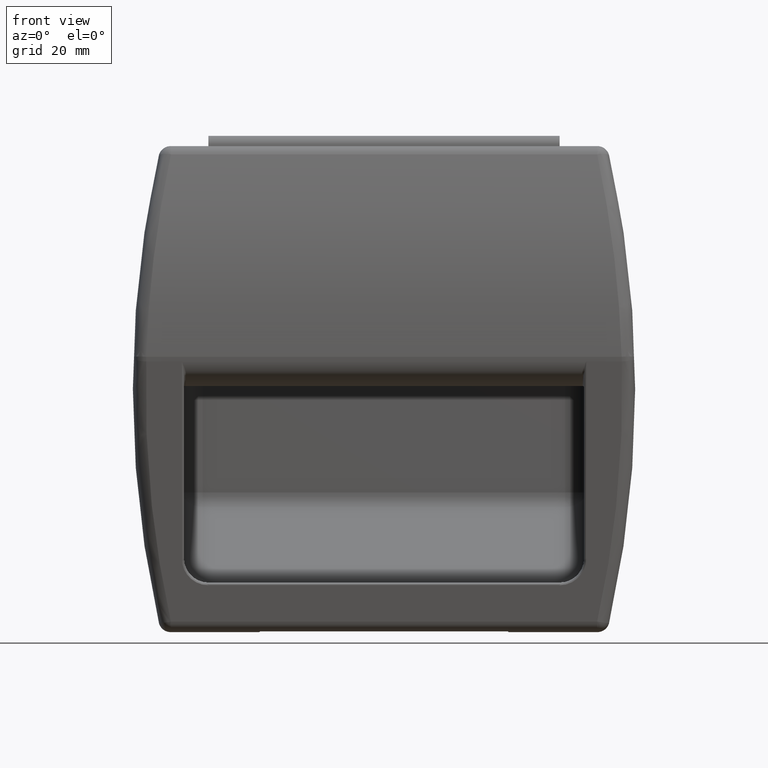
[diagram: clean part render]
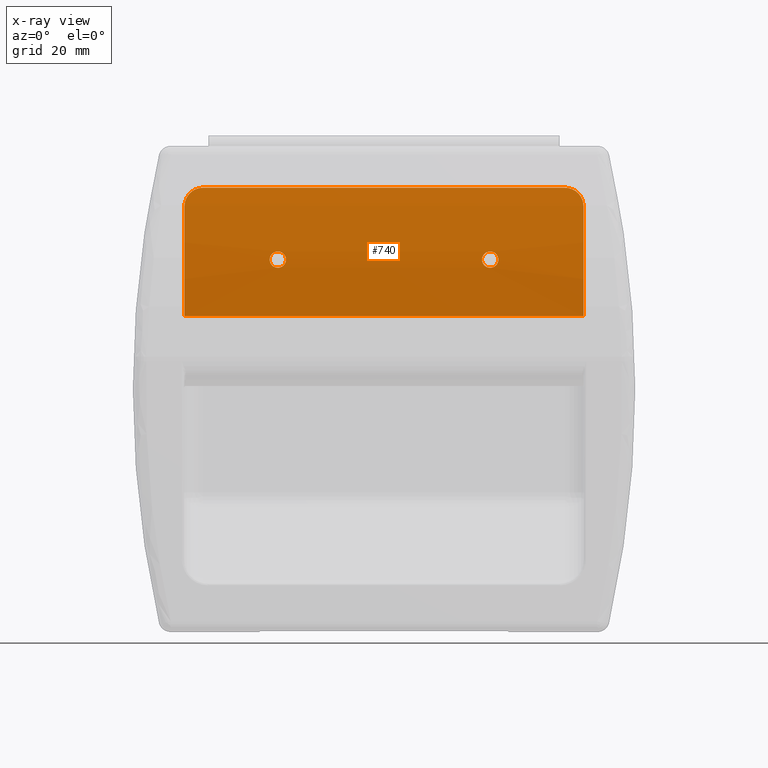
[diagram: x-ray — body ghosted, one internal face saturated and labeled with its STEP entity id]
A machine part, front view, then the same camera in x-ray: the body is ghosted and one INTERNAL B-rep face — a face not visible from any outside direction — is saturated and labeled: STEP entity #740.
In plain terms, the highlighted cylindrical surface (partial cylindrical patch) has radius 150 mm, axis along (1, 0, 0).
Its self-contained STEP definition (entity closure, byte-faithful):
#740=ADVANCED_FACE('',(#6782,#6783,#6784),#6781,.F.);
#6781=CYLINDRICAL_SURFACE('',#13339,1.50000000000E+002);
#6782=FACE_OUTER_BOUND('',#13340,.T.);
#6783=FACE_BOUND('',#13341,.T.);
#6784=FACE_BOUND('',#13342,.T.);
#13336=CARTESIAN_POINT('',(-1.00000000000E+003,-1.47175836261E+002,-2.67430042286E+000));
#13337=DIRECTION('',(-1.00000000000E+000,-0.00000000000E+000,0.00000000000E+000));
#13338=DIRECTION('',(0.00000000000E+000,-0.00000000000E+000,1.00000000000E+000));
#13339=AXIS2_PLACEMENT_3D('',#13336,#13337,#13338);
#13340=EDGE_LOOP('',(#18056,#18057,#18058,#18059,#18060,#18061));
#13341=EDGE_LOOP('',(#18062,#18063));
#13342=EDGE_LOOP('',(#18064,#18065));
#18056=ORIENTED_EDGE('',*,*,#20080,.T.);
#18057=ORIENTED_EDGE('',*,*,#20231,.T.);
#18058=ORIENTED_EDGE('',*,*,#20232,.T.);
#18059=ORIENTED_EDGE('',*,*,#20233,.F.);
#18060=ORIENTED_EDGE('',*,*,#19887,.F.);
#18061=ORIENTED_EDGE('',*,*,#20081,.T.);
#18062=ORIENTED_EDGE('',*,*,#20234,.T.);
#18063=ORIENTED_EDGE('',*,*,#20235,.T.);
#18064=ORIENTED_EDGE('',*,*,#20236,.F.);
#18065=ORIENTED_EDGE('',*,*,#20237,.F.);
#19887=EDGE_CURVE('',#28815,#28823,#28824,.T.);
#20080=EDGE_CURVE('',#30117,#30124,#30131,.T.);
#20081=EDGE_CURVE('',#28815,#30117,#30137,.T.);
#20231=EDGE_CURVE('',#30124,#30178,#31134,.T.);
#20232=EDGE_CURVE('',#30178,#28872,#31140,.T.);
#20233=EDGE_CURVE('',#28823,#28872,#31146,.T.);
#20234=EDGE_CURVE('',#31152,#31153,#31154,.T.);
#20235=EDGE_CURVE('',#31153,#31152,#31160,.T.);
#20236=EDGE_CURVE('',#31166,#31167,#31168,.T.);
#20237=EDGE_CURVE('',#31167,#31166,#31174,.T.);
#28815=VERTEX_POINT('',#37688);
#28823=VERTEX_POINT('',#37694);
#28824=(BOUNDED_CURVE() B_SPLINE_CURVE(3,(#37695,#37696,#37697,#37698,#37699,#37700,#37701,#37702,#37703,#37704,#37705,#37706,#37707,#37708,#37709,#37710,#37711,#37712),.UNSPECIFIED.,.F.,.F.) B_SPLINE_CURVE_WITH_KNOTS((4,2,2,2,2,2,2,2,4),(0.00000000000E+000,9.08258828072E-004,1.81651765614E-003,2.72477648422E-003,3.63303531229E-003,4.54129414036E-003,5.44955296843E-003,6.35781179650E-003,7.26607062457E-003),.UNSPECIFIED.) CURVE() GEOMETRIC_REPRESENTATION_ITEM() RATIONAL_B_SPLINE_CURVE((1.00000000000E+000,1.00000000000E+000,1.00000000000E+000,1.00000000000E+000,1.00000000000E+000,1.00000000000E+000,1.00000000000E+000,1.00000000000E+000,1.00000000000E+000,1.00000000000E+000,1.00000000000E+000,1.00000000000E+000,1.00000000000E+000,1.00000000000E+000,1.00000000000E+000,1.00000000000E+000,1.00000000000E+000,1.00000000000E+000)) REPRESENTATION_ITEM('') );
#28872=VERTEX_POINT('',#37755);
#30117=VERTEX_POINT('',#38840);
#30124=VERTEX_POINT('',#38845);
#30131=(BOUNDED_CURVE() B_SPLINE_CURVE(3,(#38850,#38851,#38852,#38853,#38854,#38855,#38856,#38857,#38858,#38859,#38860,#38861,#38862,#38863,#38864,#38865,#38866,#38867),.UNSPECIFIED.,.F.,.F.) B_SPLINE_CURVE_WITH_KNOTS((4,2,2,2,2,2,2,2,4),(0.00000000000E+000,9.08258828072E-004,1.81651765614E-003,2.72477648422E-003,3.63303531229E-003,4.54129414036E-003,5.44955296843E-003,6.35781179650E-003,7.26607062457E-003),.UNSPECIFIED.) CURVE() GEOMETRIC_REPRESENTATION_ITEM() RATIONAL_B_SPLINE_CURVE((1.00000000000E+000,1.00000000000E+000,1.00000000000E+000,1.00000000000E+000,1.00000000000E+000,1.00000000000E+000,1.00000000000E+000,1.00000000000E+000,1.00000000000E+000,1.00000000000E+000,1.00000000000E+000,1.00000000000E+000,1.00000000000E+000,1.00000000000E+000,1.00000000000E+000,1.00000000000E+000,1.00000000000E+000,1.00000000000E+000)) REPRESENTATION_ITEM('') );
#30137=LINE('',#38868,#38869);
#30178=VERTEX_POINT('',#38893);
#31134=CIRCLE('',#39588,1.50000000000E+002);
#31140=LINE('',#39589,#39590);
#31146=CIRCLE('',#39595,1.50000000000E+002);
#31152=VERTEX_POINT('',#39596);
#31153=VERTEX_POINT('',#39597);
#31154=(BOUNDED_CURVE() B_SPLINE_CURVE(3,(#39598,#39599,#39600,#39601,#39602,#39603,#39604,#39605,#39606,#39607,#39608,#39609,#39610,#39611,#39612,#39613,#39614,#39615,#39616,#39617,#39618,#39619,#39620,#39621,#39622,#39623,#39624,#39625,#39626,#39627,#39628,#39629),.UNSPECIFIED.,.F.,.F.) B_SPLINE_CURVE_WITH_KNOTS((4,2,2,2,2,2,2,2,2,2,2,2,2,2,2,4),(1.23330994336E-002,1.27313672789E-002,1.31296351242E-002,1.35279029695E-002,1.39261708148E-002,1.47227065054E-002,1.51209743507E-002,1.55192421960E-002,1.59175100413E-002,1.63157778866E-002,1.67140457319E-002,1.71123135772E-002,1.75105814225E-002,1.79088492678E-002,1.83071171131E-002,1.87053849584E-002),.UNSPECIFIED.) CURVE() GEOMETRIC_REPRESENTATION_ITEM() RATIONAL_B_SPLINE_CURVE((1.00000000000E+000,1.00000000000E+000,1.00000000000E+000,1.00000000000E+000,1.00000000000E+000,1.00000000000E+000,1.00000000000E+000,1.00000000000E+000,1.00000000000E+000,1.00000000000E+000,1.00000000000E+000,1.00000000000E+000,1.00000000000E+000,1.00000000000E+000,1.00000000000E+000,1.00000000000E+000,1.00000000000E+000,1.00000000000E+000,1.00000000000E+000,1.00000000000E+000,1.00000000000E+000,1.00000000000E+000,1.00000000000E+000,1.00000000000E+000,1.00000000000E+000,1.00000000000E+000,1.00000000000E+000,1.00000000000E+000,1.00000000000E+000,1.00000000000E+000,1.00000000000E+000,1.00000000000E+000)) REPRESENTATION_ITEM('') );
#31160=(BOUNDED_CURVE() B_SPLINE_CURVE(3,(#39630,#39631,#39632,#39633,#39634,#39635,#39636,#39637,#39638,#39639,#39640,#39641,#39642,#39643,#39644,#39645,#39646,#39647,#39648,#39649,#39650,#39651,#39652,#39653,#39654,#39655,#39656,#39657,#39658,#39659),.UNSPECIFIED.,.F.,.F.) B_SPLINE_CURVE_WITH_KNOTS((4,2,2,2,2,2,2,2,2,2,2,2,2,2,4),(1.87053849584E-002,1.91036528037E-002,1.95019206490E-002,2.02984563396E-002,2.06967241849E-002,2.10949920302E-002,2.14932598755E-002,2.18915277208E-002,2.26880634114E-002,2.30863312567E-002,2.34845991020E-002,2.38828669473E-002,2.42811347926E-002,2.46794026379E-002,2.50776704832E-002),.UNSPECIFIED.) CURVE() GEOMETRIC_REPRESENTATION_ITEM() RATIONAL_B_SPLINE_CURVE((1.00000000000E+000,1.00000000000E+000,1.00000000000E+000,1.00000000000E+000,1.00000000000E+000,1.00000000000E+000,1.00000000000E+000,1.00000000000E+000,1.00000000000E+000,1.00000000000E+000,1.00000000000E+000,1.00000000000E+000,1.00000000000E+000,1.00000000000E+000,1.00000000000E+000,1.00000000000E+000,1.00000000000E+000,1.00000000000E+000,1.00000000000E+000,1.00000000000E+000,1.00000000000E+000,1.00000000000E+000,1.00000000000E+000,1.00000000000E+000,1.00000000000E+000,1.00000000000E+000,1.00000000000E+000,1.00000000000E+000,1.00000000000E+000,1.00000000000E+000)) REPRESENTATION_ITEM('') );
#31166=VERTEX_POINT('',#39660);
#31167=VERTEX_POINT('',#39661);
#31168=(BOUNDED_CURVE() B_SPLINE_CURVE(3,(#39662,#39663,#39664,#39665,#39666,#39667,#39668,#39669,#39670,#39671,#39672,#39673,#39674,#39675,#39676,#39677,#39678,#39679,#39680,#39681,#39682,#39683,#39684,#39685,#39686,#39687,#39688,#39689,#39690,#39691),.UNSPECIFIED.,.F.,.F.) B_SPLINE_CURVE_WITH_KNOTS((4,2,2,2,2,2,2,2,2,2,2,2,2,2,4),(1.87053849584E-002,1.91036528037E-002,1.95019206490E-002,2.02984563396E-002,2.06967241849E-002,2.10949920302E-002,2.14932598755E-002,2.18915277208E-002,2.26880634114E-002,2.30863312567E-002,2.34845991020E-002,2.38828669473E-002,2.42811347926E-002,2.46794026379E-002,2.50776704832E-002),.UNSPECIFIED.) CURVE() GEOMETRIC_REPRESENTATION_ITEM() RATIONAL_B_SPLINE_CURVE((1.00000000000E+000,1.00000000000E+000,1.00000000000E+000,1.00000000000E+000,1.00000000000E+000,1.00000000000E+000,1.00000000000E+000,1.00000000000E+000,1.00000000000E+000,1.00000000000E+000,1.00000000000E+000,1.00000000000E+000,1.00000000000E+000,1.00000000000E+000,1.00000000000E+000,1.00000000000E+000,1.00000000000E+000,1.00000000000E+000,1.00000000000E+000,1.00000000000E+000,1.00000000000E+000,1.00000000000E+000,1.00000000000E+000,1.00000000000E+000,1.00000000000E+000,1.00000000000E+000,1.00000000000E+000,1.00000000000E+000,1.00000000000E+000,1.00000000000E+000)) REPRESENTATION_ITEM('') );
#31174=(BOUNDED_CURVE() B_SPLINE_CURVE(3,(#39692,#39693,#39694,#39695,#39696,#39697,#39698,#39699,#39700,#39701,#39702,#39703,#39704,#39705,#39706,#39707,#39708,#39709,#39710,#39711,#39712,#39713,#39714,#39715,#39716,#39717,#39718,#39719,#39720,#39721,#39722,#39723),.UNSPECIFIED.,.F.,.F.) B_SPLINE_CURVE_WITH_KNOTS((4,2,2,2,2,2,2,2,2,2,2,2,2,2,2,4),(1.23330994336E-002,1.27313672789E-002,1.31296351242E-002,1.35279029695E-002,1.39261708148E-002,1.47227065054E-002,1.51209743507E-002,1.55192421960E-002,1.59175100413E-002,1.63157778866E-002,1.67140457319E-002,1.71123135772E-002,1.75105814225E-002,1.79088492678E-002,1.83071171131E-002,1.87053849584E-002),.UNSPECIFIED.) CURVE() GEOMETRIC_REPRESENTATION_ITEM() RATIONAL_B_SPLINE_CURVE((1.00000000000E+000,1.00000000000E+000,1.00000000000E+000,1.00000000000E+000,1.00000000000E+000,1.00000000000E+000,1.00000000000E+000,1.00000000000E+000,1.00000000000E+000,1.00000000000E+000,1.00000000000E+000,1.00000000000E+000,1.00000000000E+000,1.00000000000E+000,1.00000000000E+000,1.00000000000E+000,1.00000000000E+000,1.00000000000E+000,1.00000000000E+000,1.00000000000E+000,1.00000000000E+000,1.00000000000E+000,1.00000000000E+000,1.00000000000E+000,1.00000000000E+000,1.00000000000E+000,1.00000000000E+000,1.00000000000E+000,1.00000000000E+000,1.00000000000E+000,1.00000000000E+000,1.00000000000E+000)) REPRESENTATION_ITEM('') );
#37688=CARTESIAN_POINT('',(4.43499999997E+001,-3.84400463067E+000,4.15522305443E+001));
#37694=CARTESIAN_POINT('',(4.88499999997E+001,-2.52799392462E+000,3.70371803771E+001));
#37695=CARTESIAN_POINT('',(4.43499999997E+001,-3.84400463067E+000,4.15522305443E+001));
#37696=CARTESIAN_POINT('',(4.46541116868E+001,-3.84400463067E+000,4.15522305443E+001));
#37697=CARTESIAN_POINT('',(4.49567373665E+001,-3.83444212195E+000,4.15212738085E+001));
#37698=CARTESIAN_POINT('',(4.55490904051E+001,-3.79696730919E+000,4.13995466235E+001));
#37699=CARTESIAN_POINT('',(4.58338161271E+001,-3.76948100003E+000,4.13101528693E+001));
#37700=CARTESIAN_POINT('',(4.63814869866E+001,-3.69817833624E+000,4.10770028386E+001));
#37701=CARTESIAN_POINT('',(4.66471414503E+001,-3.65367669413E+000,4.09309793304E+001));
#37702=CARTESIAN_POINT('',(4.71357029073E+001,-3.55218318103E+000,4.05955156741E+001));
#37703=CARTESIAN_POINT('',(4.73602784853E+001,-3.49520805049E+000,4.04061514301E+001));
#37704=CARTESIAN_POINT('',(4.77710519988E+001,-3.36964481401E+000,3.99851364738E+001));
#37705=CARTESIAN_POINT('',(4.79571918697E+001,-3.30070799366E+000,3.97522486333E+001));
#37706=CARTESIAN_POINT('',(4.82751385882E+001,-3.15775772867E+000,3.92644364992E+001));
#37707=CARTESIAN_POINT('',(4.84094702356E+001,-3.08306764372E+000,3.90072695239E+001));
#37708=CARTESIAN_POINT('',(4.86285913773E+001,-2.92763941973E+000,3.84661535010E+001));
#37709=CARTESIAN_POINT('',(4.87116705308E+001,-2.84771593624E+000,3.81849746287E+001));
#37710=CARTESIAN_POINT('',(4.88218668109E+001,-2.68843949419E+000,3.76181163546E+001));
#37711=CARTESIAN_POINT('',(4.88499999997E+001,-2.60840235175E+000,3.73300655895E+001));
#37712=CARTESIAN_POINT('',(4.88499999997E+001,-2.52799392462E+000,3.70371803771E+001));
#37755=CARTESIAN_POINT('',(4.88499999997E+001,2.27738849453E+000,1.01215430454E+001));
#38840=CARTESIAN_POINT('',(-4.43499999997E+001,-3.84400463067E+000,4.15522305443E+001));
#38845=CARTESIAN_POINT('',(-4.88499999997E+001,-2.52799392462E+000,3.70371803771E+001));
#38850=CARTESIAN_POINT('',(-4.43499999997E+001,-3.84400463067E+000,4.15522305443E+001));
#38851=CARTESIAN_POINT('',(-4.46541116868E+001,-3.84400463067E+000,4.15522305443E+001));
#38852=CARTESIAN_POINT('',(-4.49567373665E+001,-3.83444212195E+000,4.15212738085E+001));
#38853=CARTESIAN_POINT('',(-4.55490904051E+001,-3.79696730919E+000,4.13995466235E+001));
#38854=CARTESIAN_POINT('',(-4.58338161271E+001,-3.76948100003E+000,4.13101528693E+001));
#38855=CARTESIAN_POINT('',(-4.63814869866E+001,-3.69817833624E+000,4.10770028386E+001));
#38856=CARTESIAN_POINT('',(-4.66471414503E+001,-3.65367669413E+000,4.09309793304E+001));
#38857=CARTESIAN_POINT('',(-4.71357029073E+001,-3.55218318103E+000,4.05955156741E+001));
#38858=CARTESIAN_POINT('',(-4.73602784853E+001,-3.49520805049E+000,4.04061514301E+001));
#38859=CARTESIAN_POINT('',(-4.77710519988E+001,-3.36964481401E+000,3.99851364738E+001));
#38860=CARTESIAN_POINT('',(-4.79571918697E+001,-3.30070799366E+000,3.97522486333E+001));
#38861=CARTESIAN_POINT('',(-4.82751385882E+001,-3.15775772867E+000,3.92644364992E+001));
#38862=CARTESIAN_POINT('',(-4.84094702356E+001,-3.08306764372E+000,3.90072695239E+001));
#38863=CARTESIAN_POINT('',(-4.86285913773E+001,-2.92763941973E+000,3.84661535010E+001));
#38864=CARTESIAN_POINT('',(-4.87116705308E+001,-2.84771593624E+000,3.81849746287E+001));
#38865=CARTESIAN_POINT('',(-4.88218668109E+001,-2.68843949419E+000,3.76181163546E+001));
#38866=CARTESIAN_POINT('',(-4.88499999997E+001,-2.60840235175E+000,3.73300655895E+001));
#38867=CARTESIAN_POINT('',(-4.88499999997E+001,-2.52799392462E+000,3.70371803771E+001));
#38868=CARTESIAN_POINT('',(4.43499999997E+001,-3.84400463067E+000,4.15522305443E+001));
#38869=VECTOR('',#38870,8.86999999995E+001);
#38870=DIRECTION('',(-1.00000000000E+000,0.00000000000E+000,0.00000000000E+000));
#38893=CARTESIAN_POINT('',(-4.88499999997E+001,2.27738849453E+000,1.01215430454E+001));
#39585=CARTESIAN_POINT('',(-4.88499999997E+001,-1.47175836261E+002,-2.67430042286E+000));
#39586=DIRECTION('',(-1.00000000000E+000,0.00000000000E+000,0.00000000000E+000));
#39587=DIRECTION('',(-0.00000000000E+000,-0.00000000000E+000,-1.00000000000E+000));
#39588=AXIS2_PLACEMENT_3D('',#39585,#39586,#39587);
#39589=CARTESIAN_POINT('',(-4.88499999997E+001,2.27738849453E+000,1.01215430454E+001));
#39590=VECTOR('',#39591,9.76999999995E+001);
#39591=DIRECTION('',(1.00000000000E+000,0.00000000000E+000,0.00000000000E+000));
#39592=CARTESIAN_POINT('',(4.88499999997E+001,-1.47175836261E+002,-2.67430042286E+000));
#39593=DIRECTION('',(-1.00000000000E+000,0.00000000000E+000,0.00000000000E+000));
#39594=DIRECTION('',(-0.00000000000E+000,-0.00000000000E+000,-1.00000000000E+000));
#39595=AXIS2_PLACEMENT_3D('',#39592,#39593,#39594);
#39596=CARTESIAN_POINT('',(-2.55920792867E+001,7.81258618352E-001,2.19975068631E+001));
#39597=CARTESIAN_POINT('',(-2.64056786796E+001,7.62004203610E-002,2.59060720920E+001));
#39598=CARTESIAN_POINT('',(-2.55920792867E+001,7.81258618352E-001,2.19975068631E+001));
#39599=CARTESIAN_POINT('',(-2.57222591807E+001,7.85772120793E-001,2.19704393402E+001));
#39600=CARTESIAN_POINT('',(-2.58538238824E+001,7.88095610822E-001,2.19564702861E+001));
#39601=CARTESIAN_POINT('',(-2.61197210351E+001,7.88387764138E-001,2.19547151751E+001));
#39602=CARTESIAN_POINT('',(-2.62531034299E+001,7.86306136528E-001,2.19672309353E+001));
#39603=CARTESIAN_POINT('',(-2.65118842400E+001,7.77916898211E-001,2.20175520116E+001));
#39604=CARTESIAN_POINT('',(-2.66374110983E+001,7.71654593310E-001,2.20550849663E+001));
#39605=CARTESIAN_POINT('',(-2.68807865632E+001,7.54964472450E-001,2.21547298879E+001));
#39606=CARTESIAN_POINT('',(-2.69987268909E+001,7.44456743057E-001,2.22173104746E+001));
#39607=CARTESIAN_POINT('',(-2.73254581262E+001,7.07850491481E-001,2.24341980331E+001));
#39608=CARTESIAN_POINT('',(-2.75155698475E+001,6.75667929080E-001,2.26235362987E+001));
#39609=CARTESIAN_POINT('',(-2.77330254568E+001,6.19867599737E-001,2.29468213079E+001));
#39610=CARTESIAN_POINT('',(-2.77955938734E+001,5.99711081490E-001,2.30628814019E+001));
#39611=CARTESIAN_POINT('',(-2.78961638418E+001,5.57597634864E-001,2.33035253135E+001));
#39612=CARTESIAN_POINT('',(-2.79341132393E+001,5.35803437569E-001,2.34271961361E+001));
#39613=CARTESIAN_POINT('',(-2.79858020237E+001,4.90711976057E-001,2.36811004812E+001));
#39614=CARTESIAN_POINT('',(-2.79993364080E+001,4.67224800409E-001,2.38123715650E+001));
#39615=CARTESIAN_POINT('',(-2.80006149309E+001,4.20584470776E-001,2.40710516919E+001));
#39616=CARTESIAN_POINT('',(-2.79887718883E+001,3.97235632269E-001,2.41995773257E+001));
#39617=CARTESIAN_POINT('',(-2.79397235834E+001,3.50497519109E-001,2.44549770216E+001));
#39618=CARTESIAN_POINT('',(-2.79024149422E+001,3.27291184054E-001,2.45808316761E+001));
#39619=CARTESIAN_POINT('',(-2.78052685264E+001,2.82839377119E-001,2.48203137926E+001));
#39620=CARTESIAN_POINT('',(-2.77451899759E+001,2.61346045344E-001,2.49352950294E+001));
#39621=CARTESIAN_POINT('',(-2.76010531374E+001,2.20044918364E-001,2.51549413711E+001));
#39622=CARTESIAN_POINT('',(-2.75193418579E+001,2.00907045068E-001,2.52560492835E+001));
#39623=CARTESIAN_POINT('',(-2.73372734338E+001,1.65653253206E-001,2.54414312937E+001));
#39624=CARTESIAN_POINT('',(-2.72356970015E+001,1.49388134456E-001,2.55264782346E+001));
#39625=CARTESIAN_POINT('',(-2.70186780612E+001,1.21025223035E-001,2.56742490465E+001));
#39626=CARTESIAN_POINT('',(-2.69040803224E+001,1.08963958887E-001,2.57367951283E+001));
#39627=CARTESIAN_POINT('',(-2.66627627569E+001,8.91487168668E-002,2.58393265948E+001));
#39628=CARTESIAN_POINT('',(-2.65351309685E+001,8.13946845505E-002,2.58793101601E+001));
#39629=CARTESIAN_POINT('',(-2.64056786796E+001,7.62004203610E-002,2.59060720920E+001));
#39630=CARTESIAN_POINT('',(-2.64056786796E+001,7.62004203610E-002,2.59060720920E+001));
#39631=CARTESIAN_POINT('',(-2.62762263907E+001,7.10061561716E-002,2.59328340238E+001));
#39632=CARTESIAN_POINT('',(-2.61430118117E+001,6.82940445545E-002,2.59467773180E+001));
#39633=CARTESIAN_POINT('',(-2.58799891857E+001,6.80006317034E-002,2.59482867698E+001));
#39634=CARTESIAN_POINT('',(-2.57493674252E+001,7.03487770339E-002,2.59362158998E+001));
#39635=CARTESIAN_POINT('',(-2.53602081926E+001,8.49537659676E-002,2.58609817899E+001));
#39636=CARTESIAN_POINT('',(-2.51134721624E+001,1.04545836683E-001,2.57600281351E+001));
#39637=CARTESIAN_POINT('',(-2.47838120744E+001,1.46496633995E-001,2.55415768122E+001));
#39638=CARTESIAN_POINT('',(-2.46827973879E+001,1.62268597402E-001,2.54591594957E+001));
#39639=CARTESIAN_POINT('',(-2.44978782186E+001,1.97163525003E-001,2.52757916043E+001));
#39640=CARTESIAN_POINT('',(-2.44133359603E+001,2.16512376630E-001,2.51736367362E+001));
#39641=CARTESIAN_POINT('',(-2.42679315387E+001,2.57098599294E-001,2.49579589746E+001));
#39642=CARTESIAN_POINT('',(-2.42063587745E+001,2.78402120505E-001,2.48441016497E+001));
#39643=CARTESIAN_POINT('',(-2.41054912631E+001,3.22948506338E-001,2.46043242025E+001));
#39644=CARTESIAN_POINT('',(-2.40666546060E+001,3.46145479476E-001,2.44786265062E+001));
#39645=CARTESIAN_POINT('',(-2.39887600038E+001,4.15656621479E-001,2.40991449820E+001));
#39646=CARTESIAN_POINT('',(-2.39868081971E+001,4.63634699626E-001,2.38333031279E+001));
#39647=CARTESIAN_POINT('',(-2.40591634936E+001,5.31302227732E-001,2.34526559111E+001));
#39648=CARTESIAN_POINT('',(-2.40960569209E+001,5.53531619172E-001,2.33266409732E+001));
#39649=CARTESIAN_POINT('',(-2.41937433802E+001,5.95916992386E-001,2.30846597304E+001));
#39650=CARTESIAN_POINT('',(-2.42537950340E+001,6.15883596407E-001,2.29697970094E+001));
#39651=CARTESIAN_POINT('',(-2.43960360655E+001,6.53476899498E-001,2.27521889538E+001));
#39652=CARTESIAN_POINT('',(-2.44792856382E+001,6.71246558370E-001,2.26485952001E+001));
#39653=CARTESIAN_POINT('',(-2.46621137419E+001,7.03055154949E-001,2.24621753548E+001));
#39654=CARTESIAN_POINT('',(-2.47619821522E+001,7.17251911054E-001,2.23784462422E+001));
#39655=CARTESIAN_POINT('',(-2.49789094147E+001,7.42274140286E-001,2.22302826864E+001));
#39656=CARTESIAN_POINT('',(-2.50958038010E+001,7.53006835485E-001,2.21663935127E+001));
#39657=CARTESIAN_POINT('',(-2.53366986304E+001,7.70166135391E-001,2.20639911510E+001));
#39658=CARTESIAN_POINT('',(-2.54618993926E+001,7.76745115911E-001,2.20245743860E+001));
#39659=CARTESIAN_POINT('',(-2.55920792867E+001,7.81258618352E-001,2.19975068631E+001));
#39660=CARTESIAN_POINT('',(2.64056786796E+001,7.62004203610E-002,2.59060720920E+001));
#39661=CARTESIAN_POINT('',(2.55920792867E+001,7.81258618352E-001,2.19975068631E+001));
#39662=CARTESIAN_POINT('',(2.64056786796E+001,7.62004203610E-002,2.59060720920E+001));
#39663=CARTESIAN_POINT('',(2.62762263907E+001,7.10061561716E-002,2.59328340238E+001));
#39664=CARTESIAN_POINT('',(2.61430118117E+001,6.82940445545E-002,2.59467773180E+001));
#39665=CARTESIAN_POINT('',(2.58799891857E+001,6.80006317034E-002,2.59482867698E+001));
#39666=CARTESIAN_POINT('',(2.57493674252E+001,7.03487770339E-002,2.59362158998E+001));
#39667=CARTESIAN_POINT('',(2.53602081926E+001,8.49537659676E-002,2.58609817899E+001));
#39668=CARTESIAN_POINT('',(2.51134721624E+001,1.04545836683E-001,2.57600281351E+001));
#39669=CARTESIAN_POINT('',(2.47838120744E+001,1.46496633995E-001,2.55415768122E+001));
#39670=CARTESIAN_POINT('',(2.46827973879E+001,1.62268597402E-001,2.54591594957E+001));
#39671=CARTESIAN_POINT('',(2.44978782186E+001,1.97163525003E-001,2.52757916043E+001));
#39672=CARTESIAN_POINT('',(2.44133359603E+001,2.16512376630E-001,2.51736367362E+001));
#39673=CARTESIAN_POINT('',(2.42679315387E+001,2.57098599294E-001,2.49579589746E+001));
#39674=CARTESIAN_POINT('',(2.42063587745E+001,2.78402120505E-001,2.48441016497E+001));
#39675=CARTESIAN_POINT('',(2.41054912631E+001,3.22948506338E-001,2.46043242025E+001));
#39676=CARTESIAN_POINT('',(2.40666546060E+001,3.46145479476E-001,2.44786265062E+001));
#39677=CARTESIAN_POINT('',(2.39887600038E+001,4.15656621479E-001,2.40991449820E+001));
#39678=CARTESIAN_POINT('',(2.39868081971E+001,4.63634699626E-001,2.38333031279E+001));
#39679=CARTESIAN_POINT('',(2.40591634936E+001,5.31302227732E-001,2.34526559111E+001));
#39680=CARTESIAN_POINT('',(2.40960569209E+001,5.53531619172E-001,2.33266409732E+001));
#39681=CARTESIAN_POINT('',(2.41937433802E+001,5.95916992386E-001,2.30846597304E+001));
#39682=CARTESIAN_POINT('',(2.42537950340E+001,6.15883596407E-001,2.29697970094E+001));
#39683=CARTESIAN_POINT('',(2.43960360655E+001,6.53476899498E-001,2.27521889538E+001));
#39684=CARTESIAN_POINT('',(2.44792856382E+001,6.71246558370E-001,2.26485952001E+001));
#39685=CARTESIAN_POINT('',(2.46621137419E+001,7.03055154949E-001,2.24621753548E+001));
#39686=CARTESIAN_POINT('',(2.47619821522E+001,7.17251911054E-001,2.23784462422E+001));
#39687=CARTESIAN_POINT('',(2.49789094147E+001,7.42274140286E-001,2.22302826864E+001));
#39688=CARTESIAN_POINT('',(2.50958038010E+001,7.53006835485E-001,2.21663935127E+001));
#39689=CARTESIAN_POINT('',(2.53366986304E+001,7.70166135391E-001,2.20639911510E+001));
#39690=CARTESIAN_POINT('',(2.54618993926E+001,7.76745115911E-001,2.20245743860E+001));
#39691=CARTESIAN_POINT('',(2.55920792867E+001,7.81258618352E-001,2.19975068631E+001));
#39692=CARTESIAN_POINT('',(2.55920792867E+001,7.81258618352E-001,2.19975068631E+001));
#39693=CARTESIAN_POINT('',(2.57222591807E+001,7.85772120793E-001,2.19704393402E+001));
#39694=CARTESIAN_POINT('',(2.58538238824E+001,7.88095610822E-001,2.19564702861E+001));
#39695=CARTESIAN_POINT('',(2.61197210351E+001,7.88387764138E-001,2.19547151751E+001));
#39696=CARTESIAN_POINT('',(2.62531034299E+001,7.86306136528E-001,2.19672309353E+001));
#39697=CARTESIAN_POINT('',(2.65118842400E+001,7.77916898211E-001,2.20175520116E+001));
#39698=CARTESIAN_POINT('',(2.66374110983E+001,7.71654593310E-001,2.20550849663E+001));
#39699=CARTESIAN_POINT('',(2.68807865632E+001,7.54964472450E-001,2.21547298879E+001));
#39700=CARTESIAN_POINT('',(2.69987268909E+001,7.44456743057E-001,2.22173104746E+001));
#39701=CARTESIAN_POINT('',(2.73254581262E+001,7.07850491481E-001,2.24341980331E+001));
#39702=CARTESIAN_POINT('',(2.75155698475E+001,6.75667929080E-001,2.26235362987E+001));
#39703=CARTESIAN_POINT('',(2.77330254568E+001,6.19867599737E-001,2.29468213079E+001));
#39704=CARTESIAN_POINT('',(2.77955938734E+001,5.99711081490E-001,2.30628814019E+001));
#39705=CARTESIAN_POINT('',(2.78961638418E+001,5.57597634864E-001,2.33035253135E+001));
#39706=CARTESIAN_POINT('',(2.79341132393E+001,5.35803437569E-001,2.34271961361E+001));
#39707=CARTESIAN_POINT('',(2.79858020237E+001,4.90711976057E-001,2.36811004812E+001));
#39708=CARTESIAN_POINT('',(2.79993364080E+001,4.67224800409E-001,2.38123715650E+001));
#39709=CARTESIAN_POINT('',(2.80006149309E+001,4.20584470776E-001,2.40710516919E+001));
#39710=CARTESIAN_POINT('',(2.79887718883E+001,3.97235632269E-001,2.41995773257E+001));
#39711=CARTESIAN_POINT('',(2.79397235834E+001,3.50497519109E-001,2.44549770216E+001));
#39712=CARTESIAN_POINT('',(2.79024149422E+001,3.27291184054E-001,2.45808316761E+001));
#39713=CARTESIAN_POINT('',(2.78052685264E+001,2.82839377119E-001,2.48203137926E+001));
#39714=CARTESIAN_POINT('',(2.77451899759E+001,2.61346045344E-001,2.49352950294E+001));
#39715=CARTESIAN_POINT('',(2.76010531374E+001,2.20044918364E-001,2.51549413711E+001));
#39716=CARTESIAN_POINT('',(2.75193418579E+001,2.00907045068E-001,2.52560492835E+001));
#39717=CARTESIAN_POINT('',(2.73372734338E+001,1.65653253206E-001,2.54414312937E+001));
#39718=CARTESIAN_POINT('',(2.72356970015E+001,1.49388134456E-001,2.55264782346E+001));
#39719=CARTESIAN_POINT('',(2.70186780612E+001,1.21025223035E-001,2.56742490465E+001));
#39720=CARTESIAN_POINT('',(2.69040803224E+001,1.08963958887E-001,2.57367951283E+001));
#39721=CARTESIAN_POINT('',(2.66627627569E+001,8.91487168668E-002,2.58393265948E+001));
#39722=CARTESIAN_POINT('',(2.65351309685E+001,8.13946845505E-002,2.58793101601E+001));
#39723=CARTESIAN_POINT('',(2.64056786796E+001,7.62004203610E-002,2.59060720920E+001));